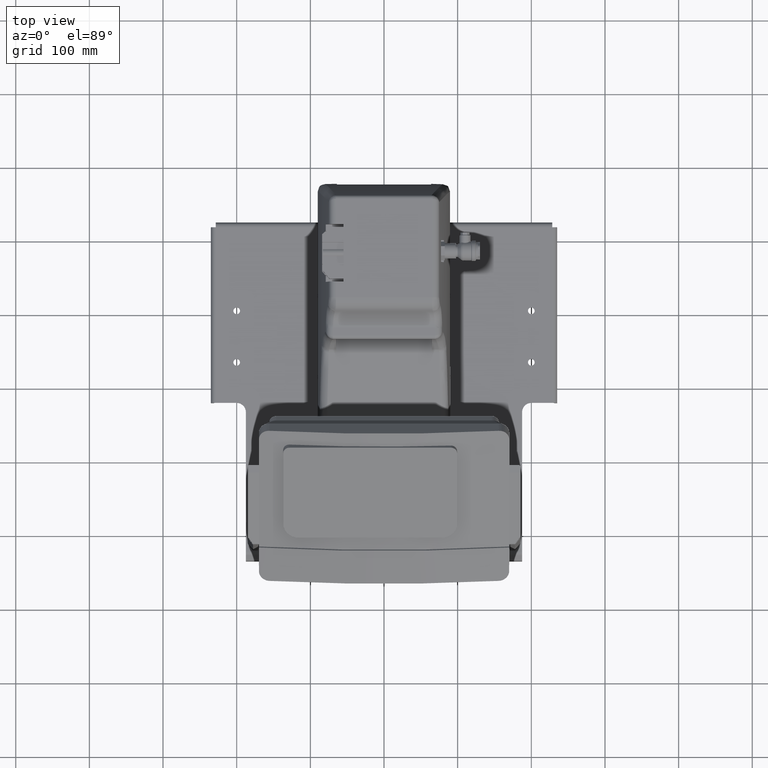
[diagram: clean part render]
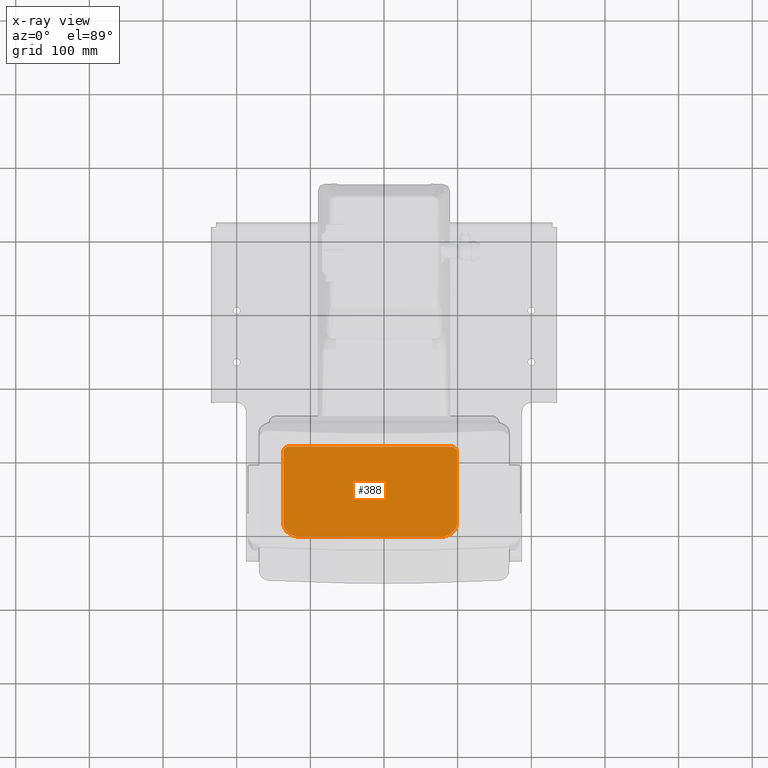
[diagram: x-ray — body ghosted, one internal face saturated and labeled with its STEP entity id]
A machine part, top view, then the same camera in x-ray: the body is ghosted and one INTERNAL B-rep face — a face not visible from any outside direction — is saturated and labeled: STEP entity #388.
In plain terms, the highlighted face is a freeform B-spline surface patch.
Its self-contained STEP definition (entity closure, byte-faithful):
#130=CARTESIAN_POINT('',(-136.7866375998513,-192.41431470616885,611.4020700102393));
#131=VERTEX_POINT('',#130);
#132=CARTESIAN_POINT('',(-115.28663759985125,-211.03386088753405,600.65207001023907));
#133=VERTEX_POINT('',#132);
#134=CARTESIAN_POINT('',(-115.2866375998513,-192.41431470616908,611.40207001023941));
#135=DIRECTION('',(1.998401E-015,-0.500000000000016,0.866025403784429));
#136=DIRECTION('',(-0.707106781186548,-0.612372435695788,-0.353553390593284));
#137=AXIS2_PLACEMENT_3D('',#134,#135,#136);
#138=CIRCLE('',#137,21.500000000000004);
#139=EDGE_CURVE('',#131,#133,#138,.T.);
#181=CARTESIAN_POINT('',(-136.78663759985164,-97.151520289881546,666.40207001024112));
#182=VERTEX_POINT('',#181);
#189=CARTESIAN_POINT('',(-136.78663759985167,-97.151520289881489,666.402070010241));
#190=DIRECTION('',(3.100550E-015,-0.86602540378443,-0.500000000000014));
#191=VECTOR('',#190,110.00000000000004);
#192=LINE('',#189,#191);
#193=EDGE_CURVE('',#182,#131,#192,.T.);
#262=CARTESIAN_POINT('',(77.713362400148242,-211.03386088753359,600.65207001023862));
#263=VERTEX_POINT('',#262);
#264=CARTESIAN_POINT('',(99.213362400148128,-192.41431470616817,611.40207001023884));
#265=VERTEX_POINT('',#264);
#266=CARTESIAN_POINT('',(77.713362400148128,-192.41431470616817,611.40207001023896));
#267=DIRECTION('',(2.692291E-015,-0.500000000000013,0.866025403784431));
#268=DIRECTION('',(0.707106781186549,-0.612372435695787,-0.353553390593284));
#269=AXIS2_PLACEMENT_3D('',#266,#267,#268);
#270=CIRCLE('',#269,21.500000000000004);
#271=EDGE_CURVE('',#263,#265,#270,.T.);
#295=CARTESIAN_POINT('',(99.213362400147787,-97.151520289880636,666.40207001024066));
#296=VERTEX_POINT('',#295);
#297=CARTESIAN_POINT('',(99.213362400148156,-192.41431470616814,611.40207001023884));
#298=DIRECTION('',(-2.971361E-015,0.86602540378443,0.500000000000014));
#299=VECTOR('',#298,110.00000000000026);
#300=LINE('',#297,#299);
#301=EDGE_CURVE('',#265,#296,#300,.T.);
#318=CARTESIAN_POINT('',(90.713362400147787,-89.790304357712785,670.65207001024078));
#319=VERTEX_POINT('',#318);
#320=CARTESIAN_POINT('',(90.713362400147787,-97.151520289880409,666.40207001024055));
#321=DIRECTION('',(5.412337E-015,-0.500000000000013,0.866025403784431));
#322=DIRECTION('',(0.707106781186543,0.612372435695795,0.353553390593282));
#323=AXIS2_PLACEMENT_3D('',#320,#321,#322);
#324=CIRCLE('',#323,8.500000000000002);
#325=EDGE_CURVE('',#296,#319,#324,.T.);
#343=CARTESIAN_POINT('',(-128.2866375998517,-89.790304357714149,670.65207001024123));
#344=VERTEX_POINT('',#343);
#345=CARTESIAN_POINT('',(-128.28663759985164,-97.151520289881546,666.40207001024112));
#346=DIRECTION('',(6.106227E-016,-0.500000000000011,0.866025403784432));
#347=DIRECTION('',(-0.707106781186543,0.612372435695794,0.353553390593285));
#348=AXIS2_PLACEMENT_3D('',#345,#346,#347);
#349=CIRCLE('',#348,8.500000000000002);
#350=EDGE_CURVE('',#344,#182,#349,.T.);
#363=CARTESIAN_POINT('',(-136.78663759985184,-211.03386088753527,600.6520700102385));
#364=CARTESIAN_POINT('',(99.213362400148725,-211.03386088753416,600.65207001023805));
#365=CARTESIAN_POINT('',(-136.78663759985227,-89.790304357712998,670.65207001024169));
#366=CARTESIAN_POINT('',(99.213362400148299,-89.790304357711904,670.65207001024123));
#367=B_SPLINE_SURFACE_WITH_KNOTS('',1,1,((#363,#365),(#364,#366)),.UNSPECIFIED.,.F.,.F.,.U.,(2,2),(2,2),(0.0,236.00000000000057),(0.0,140.00000000000233),.UNSPECIFIED.);
#368=ORIENTED_EDGE('',*,*,#139,.F.);
#369=ORIENTED_EDGE('',*,*,#193,.F.);
#370=ORIENTED_EDGE('',*,*,#350,.F.);
#371=CARTESIAN_POINT('',(90.713362400147787,-89.790304357712955,670.65207001024078));
#372=DIRECTION('',(-1.0,0.0,0.0));
#373=VECTOR('',#372,218.99999999999949);
#374=LINE('',#371,#373);
#375=EDGE_CURVE('',#319,#344,#374,.T.);
#376=ORIENTED_EDGE('',*,*,#375,.F.);
#377=ORIENTED_EDGE('',*,*,#325,.F.);
#378=ORIENTED_EDGE('',*,*,#301,.F.);
#379=ORIENTED_EDGE('',*,*,#271,.F.);
#380=CARTESIAN_POINT('',(-115.28663759985125,-211.0338608875345,600.65207001023907));
#381=DIRECTION('',(1.0,0.0,0.0));
#382=VECTOR('',#381,192.99999999999949);
#383=LINE('',#380,#382);
#384=EDGE_CURVE('',#133,#263,#383,.T.);
#385=ORIENTED_EDGE('',*,*,#384,.F.);
#386=EDGE_LOOP('',(#368,#369,#370,#376,#377,#378,#379,#385));
#387=FACE_OUTER_BOUND('',#386,.T.);
#388=ADVANCED_FACE('',(#387),#367,.F.);